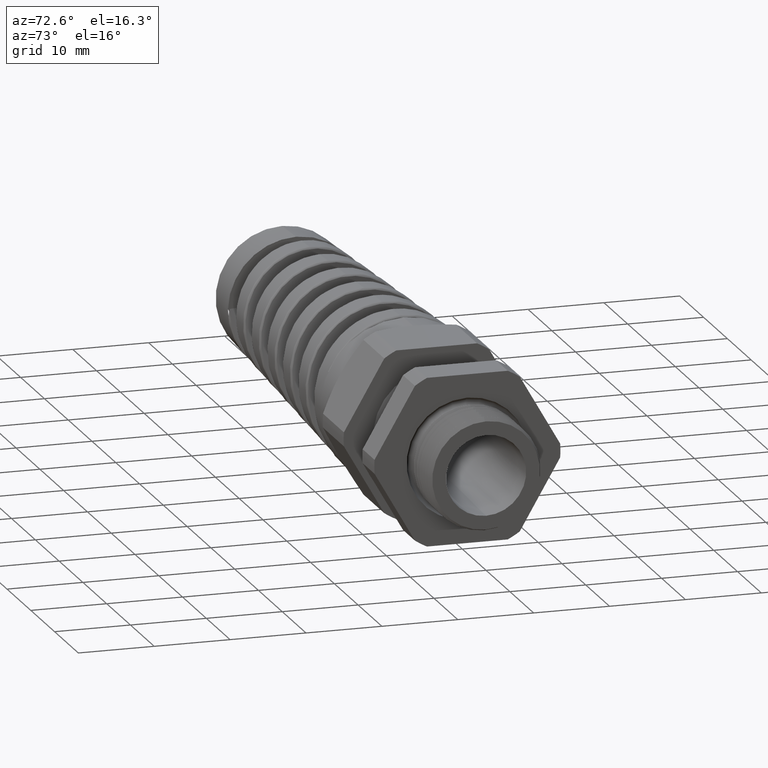
[diagram: clean part render]
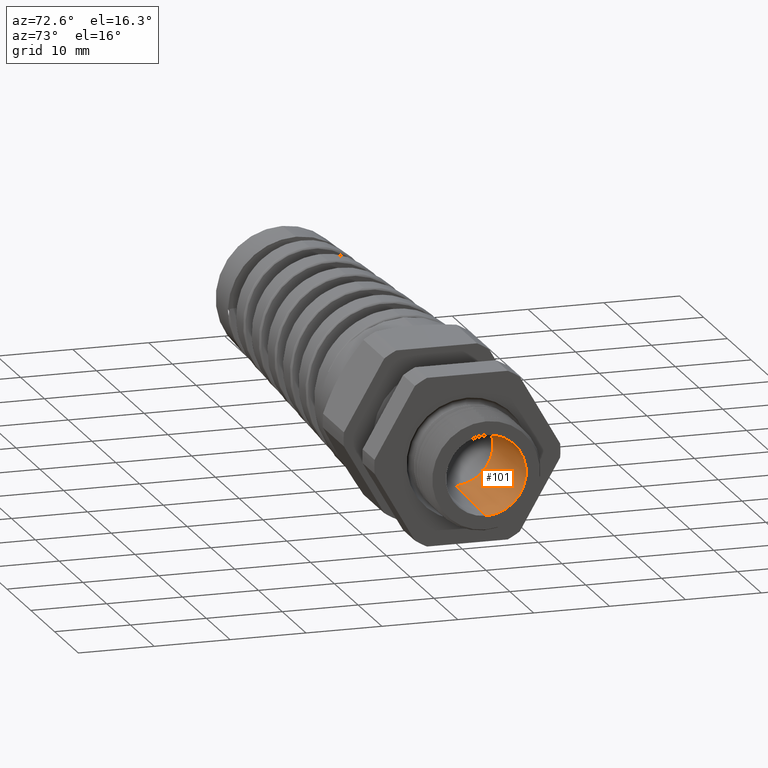
[diagram: same view with one face highlighted and labeled with its STEP entity id]
A machine part, auxiliary view. The second image highlights one B-rep face of the part: STEP entity #101.
In plain terms, the highlighted conical surface has half-angle 1.5 deg.
Its self-contained STEP definition (entity closure, byte-faithful):
#79 = ORIENTED_EDGE ( 'NONE', *, *, #80, .F. ) ;
#80 = EDGE_CURVE ( 'NONE', #11796, #10913, #1227, .T. ) ;
#81 = ORIENTED_EDGE ( 'NONE', *, *, #194, .T. ) ;
#82 = ORIENTED_EDGE ( 'NONE', *, *, #99, .T. ) ;
#99 = EDGE_CURVE ( 'NONE', #199, #209, #1251, .T. ) ;
#101 = ADVANCED_FACE ( 'NONE', ( #1246 ), #1245, .F. ) ;
#102 = EDGE_LOOP ( 'NONE', ( #103, #79, #81, #82 ) ) ;
#103 = ORIENTED_EDGE ( 'NONE', *, *, #205, .F. ) ;
#194 = EDGE_CURVE ( 'NONE', #11796, #199, #1458, .T. ) ;
#199 = VERTEX_POINT ( 'NONE', #1443 ) ;
#205 = EDGE_CURVE ( 'NONE', #10913, #209, #1438, .T. ) ;
#209 = VERTEX_POINT ( 'NONE', #1490 ) ;
#1223 = DIRECTION ( 'NONE',  ( 0.0000000000000000000, 0.0000000000000000000, -1.000000000000000000 ) ) ;
#1224 = DIRECTION ( 'NONE',  ( 1.000000000000000000, 0.0000000000000000000, 0.0000000000000000000 ) ) ;
#1225 = CARTESIAN_POINT ( 'NONE',  ( -0.5068503937007873300, 0.0000000000000000000, 0.0000000000000000000 ) ) ;
#1226 = AXIS2_PLACEMENT_3D ( 'NONE', #1225, #1224, #1223 ) ;
#1227 = CIRCLE ( 'NONE', #1226, 0.1950000000000000300 ) ;
#1241 = DIRECTION ( 'NONE',  ( 0.0000000000000000000, 0.0000000000000000000, -1.000000000000000000 ) ) ;
#1242 = DIRECTION ( 'NONE',  ( 1.000000000000000000, 0.0000000000000000000, 0.0000000000000000000 ) ) ;
#1243 = CARTESIAN_POINT ( 'NONE',  ( -0.5068503937007873300, 0.0000000000000000000, 0.0000000000000000000 ) ) ;
#1244 = AXIS2_PLACEMENT_3D ( 'NONE', #1243, #1242, #1241 ) ;
#1245 = CONICAL_SURFACE ( 'NONE', #1244, 0.1950000000000000300, 0.02617993877990818600 ) ;
#1246 = FACE_OUTER_BOUND ( 'NONE', #102, .T. ) ;
#1247 = DIRECTION ( 'NONE',  ( 0.0000000000000000000, 0.0000000000000000000, -1.000000000000000000 ) ) ;
#1248 = DIRECTION ( 'NONE',  ( 1.000000000000000000, 0.0000000000000000000, 0.0000000000000000000 ) ) ;
#1249 = CARTESIAN_POINT ( 'NONE',  ( 0.0000000000000000000, 0.0000000000000000000, 0.0000000000000000000 ) ) ;
#1250 = AXIS2_PLACEMENT_3D ( 'NONE', #1249, #1248, #1247 ) ;
#1251 = CIRCLE ( 'NONE', #1250, 0.2082723446567569500 ) ;
#1435 = DIRECTION ( 'NONE',  ( 0.9996573249755573700, 3.205751595667430400E-018, 0.02617694830786639800 ) ) ;
#1436 = VECTOR ( 'NONE', #1435, 39.37007874015748100 ) ;
#1437 = CARTESIAN_POINT ( 'NONE',  ( -0.5068503937007873300, 2.388061258337339000E-017, 0.1950000000000000300 ) ) ;
#1438 = LINE ( 'NONE', #1437, #1436 ) ;
#1443 = CARTESIAN_POINT ( 'NONE',  ( 0.0000000000000000000, 0.0000000000000000000, -0.2082723446567569500 ) ) ;
#1455 = DIRECTION ( 'NONE',  ( 0.9996573249755573700, 0.0000000000000000000, -0.02617694830786639800 ) ) ;
#1456 = VECTOR ( 'NONE', #1455, 39.37007874015748100 ) ;
#1457 = CARTESIAN_POINT ( 'NONE',  ( -0.5068503937007873300, 0.0000000000000000000, -0.1950000000000000300 ) ) ;
#1458 = LINE ( 'NONE', #1457, #1456 ) ;
#1490 = CARTESIAN_POINT ( 'NONE',  ( 0.0000000000000000000, 2.550600602348117500E-017, 0.2082723446567569500 ) ) ;
#5409 = CARTESIAN_POINT ( 'NONE',  ( -0.5068503937007873300, 2.469330930342728400E-017, 0.1950000000000000300 ) ) ;
#6476 = CARTESIAN_POINT ( 'NONE',  ( -0.5068503937007873300, 0.0000000000000000000, -0.1950000000000000300 ) ) ;
#10913 = VERTEX_POINT ( 'NONE', #5409 ) ;
#11796 = VERTEX_POINT ( 'NONE', #6476 ) ;